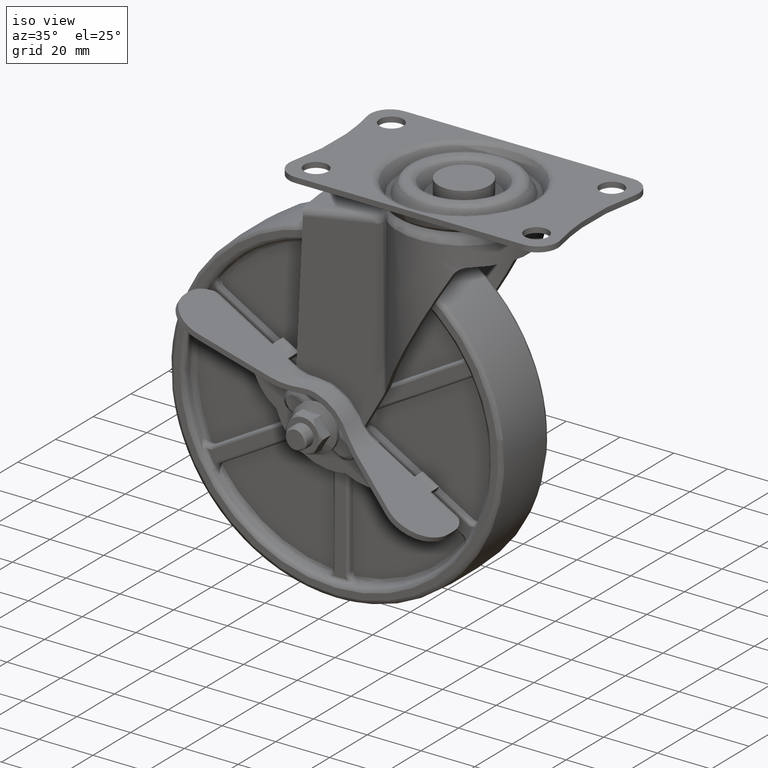
[diagram: clean part render]
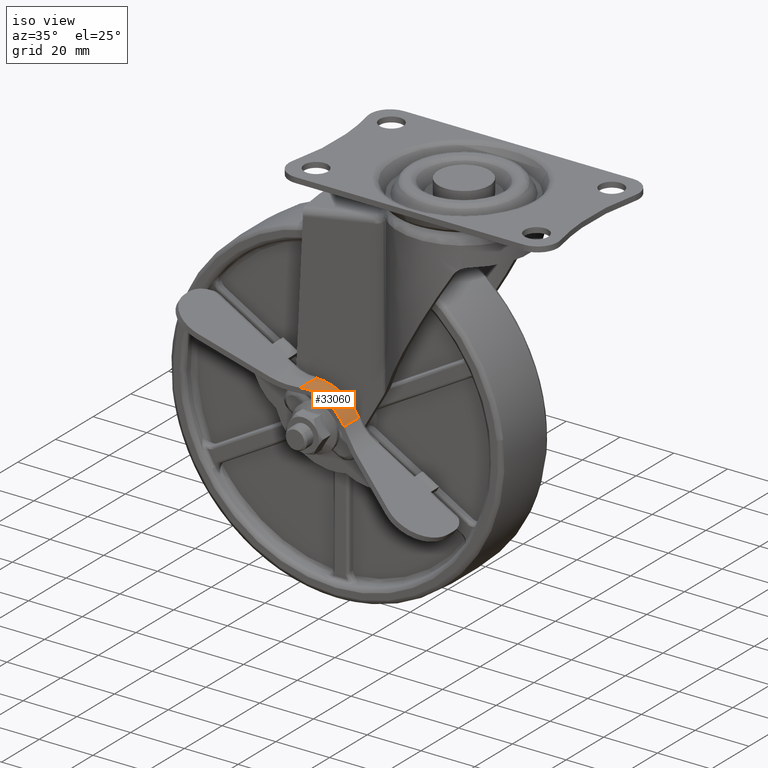
[diagram: same view with one face highlighted and labeled with its STEP entity id]
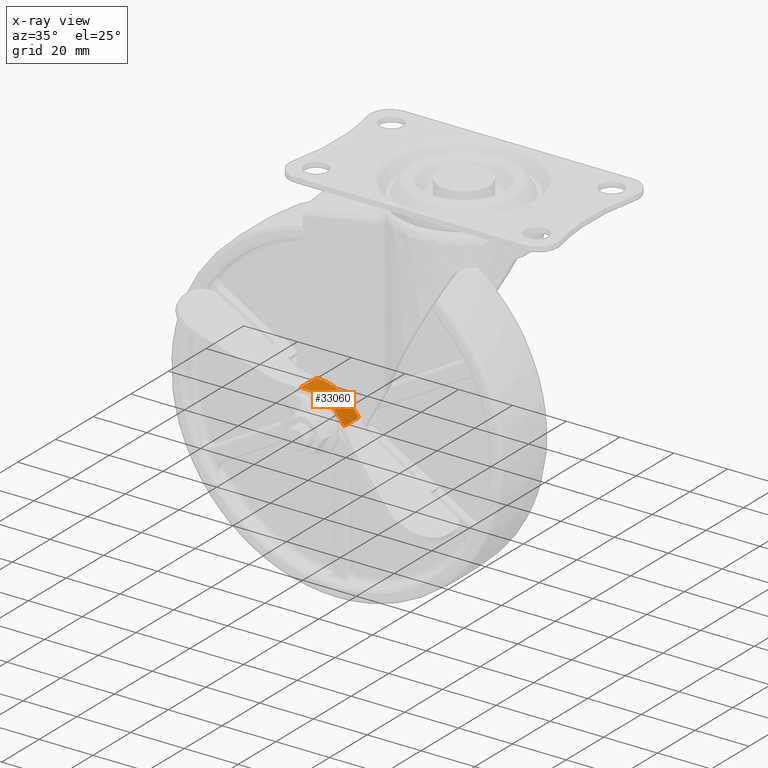
[diagram: x-ray of the same camera — body ghosted, the highlighted face saturated]
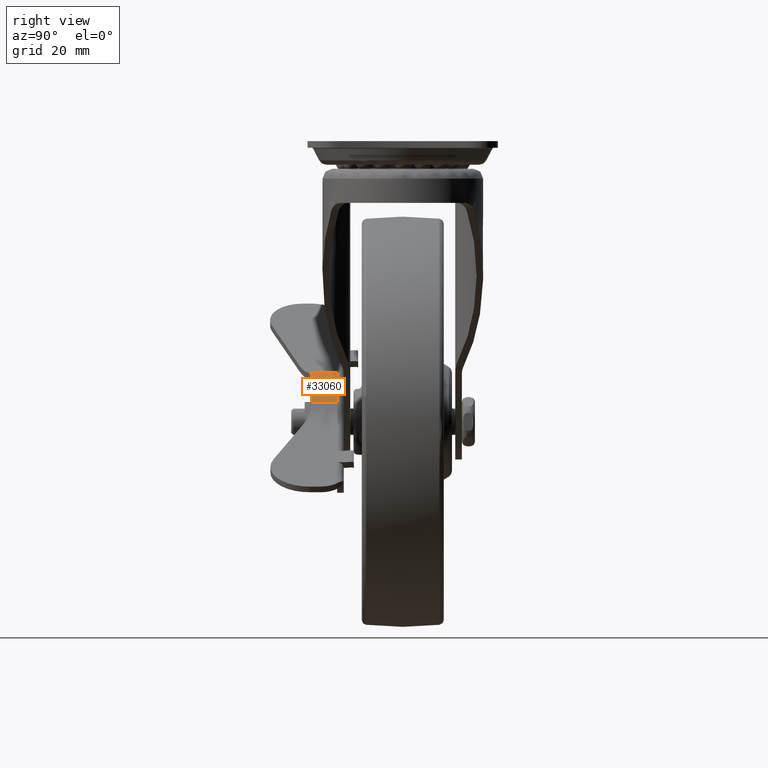
[diagram: same view with one face highlighted and labeled with its STEP entity id]
A machine part, iso view. The second image highlights one B-rep face of the part: STEP entity #33060.
The next image is the same camera in x-ray: the body ghosted, the highlighted face saturated — about 0% of this face is hidden behind the body in this view.
A second angle (right view) of the same face is appended — the face is thin or edge-on in the first view.
In plain terms, the highlighted face is a freeform B-spline surface patch.
Its self-contained STEP definition (entity closure, byte-faithful):
#31744=CARTESIAN_POINT('',(-25.138719599071909,-19.999999999999002,-77.655077235295238));
#31745=VERTEX_POINT('',#31744);
#31754=CARTESIAN_POINT('',(-25.138719599071909,-27.868861974446549,-77.655077235295238));
#31755=VERTEX_POINT('',#31754);
#31756=CARTESIAN_POINT('',(-25.138719599071909,-27.868861974446549,-77.655077235295238));
#31757=CARTESIAN_POINT('',(-25.138719599071909,-19.999999999999002,-77.655077235295238));
#31758=QUASI_UNIFORM_CURVE('',1,(#31756,#31757),.UNSPECIFIED.,.F.,.U.);
#31759=EDGE_CURVE('',#31755,#31745,#31758,.T.);
#31988=CARTESIAN_POINT('',(-40.868765832653168,-19.999999999999002,-68.573322480068214));
#31989=VERTEX_POINT('',#31988);
#32001=CARTESIAN_POINT('',(-25.138719599071909,-19.999999999999002,-77.655077235295238));
#32002=CARTESIAN_POINT('',(-26.008408918612400,-19.999999999998991,-76.092609768018207));
#32003=CARTESIAN_POINT('',(-27.919290814433140,-19.999999999999030,-73.632730875286157));
#32004=CARTESIAN_POINT('',(-31.340594839720641,-19.999999999999059,-71.032600186757946));
#32005=CARTESIAN_POINT('',(-34.593645395936448,-19.999999999998920,-69.503510160626433));
#32006=CARTESIAN_POINT('',(-37.786970740985083,-19.999999999999119,-68.702598195621263));
#32007=CARTESIAN_POINT('',(-39.875496546120800,-19.999999999998920,-68.558167262021897));
#32008=CARTESIAN_POINT('',(-40.868765832653168,-19.999999999999002,-68.573322480068214));
#32009=B_SPLINE_CURVE_WITH_KNOTS('',3,(#32001,#32002,#32003,#32004,#32005,#32006,#32007,#32008),.UNSPECIFIED.,.F.,.U.,(4,1,1,1,1,4),(0.000000102830942,5.364299409139294,9.238525284178913,12.814687591197920,16.092872991053429,19.073030761205668),.UNSPECIFIED.);
#32010=EDGE_CURVE('',#31745,#31989,#32009,.T.);
#32730=CARTESIAN_POINT('',(-40.868765904016101,-28.503809512559648,-68.573317780900382));
#32731=VERTEX_POINT('',#32730);
#32766=CARTESIAN_POINT('',(-35.420783333994478,-27.841463921768550,-69.345978672774322));
#32767=VERTEX_POINT('',#32766);
#32773=CARTESIAN_POINT('',(-40.868765904016101,-28.503809512559648,-68.573317780900382));
#32774=CARTESIAN_POINT('',(-39.955856303828092,-28.296949490633811,-68.559454064888897));
#32775=CARTESIAN_POINT('',(-39.045430353163709,-28.132113628317601,-68.615796921711521));
#32776=CARTESIAN_POINT('',(-37.681881270934547,-27.961250305939888,-68.807450073438744));
#32777=CARTESIAN_POINT('',(-37.227719166160163,-27.917059537156671,-68.889278579338679));
#32778=CARTESIAN_POINT('',(-36.660318135239180,-27.879570090147471,-69.014903675818061));
#32779=CARTESIAN_POINT('',(-36.546853047797200,-27.872961148556431,-69.041197749316254));
#32780=CARTESIAN_POINT('',(-36.319949700857620,-27.861572559145060,-69.096155417557128));
#32781=CARTESIAN_POINT('',(-36.206344701000177,-27.856788169471251,-69.124864074220852));
#32782=CARTESIAN_POINT('',(-35.867059884591043,-27.845305867602040,-69.214196545815796));
#32783=CARTESIAN_POINT('',(-35.642915617059067,-27.841463921768501,-69.278005229556271));
#32784=CARTESIAN_POINT('',(-35.420783333994450,-27.841463921768490,-69.345978672774265));
#32785=B_SPLINE_CURVE_WITH_KNOTS('',3,(#32773,#32774,#32775,#32776,#32777,#32778,#32779,#32780,#32781,#32782,#32783,#32784),.UNSPECIFIED.,.F.,.U.,(4,2,2,2,2,4),(0.0,0.500000000000000,0.749999999999999,0.812499999999999,0.874999999999999,1.0),.UNSPECIFIED.);
#32786=EDGE_CURVE('',#32731,#32767,#32785,.T.);
#32809=CARTESIAN_POINT('',(-25.755758589784389,-27.841463921768501,-76.630811359773645));
#32810=VERTEX_POINT('',#32809);
#32816=CARTESIAN_POINT('',(-35.420783333994478,-27.841463921768550,-69.345978672774322));
#32817=CARTESIAN_POINT('',(-33.697852664578491,-27.841463921768579,-69.872234116963597));
#32818=CARTESIAN_POINT('',(-31.529834621139400,-27.841463921768529,-70.920001166362198));
#32819=CARTESIAN_POINT('',(-28.251311138085779,-27.841463921768611,-73.419187955431894));
#32820=CARTESIAN_POINT('',(-26.701260383658951,-27.841463921768479,-75.173533068811892));
#32821=CARTESIAN_POINT('',(-25.755758589784389,-27.841463921768501,-76.630811359773645));
#32822=B_SPLINE_CURVE_WITH_KNOTS('',3,(#32816,#32817,#32818,#32819,#32820,#32821),.UNSPECIFIED.,.F.,.U.,(4,1,1,4),(0.000000046256021,5.404070350882703,7.141051851721110,12.352140580050170),.UNSPECIFIED.);
#32823=EDGE_CURVE('',#32767,#32810,#32822,.T.);
#32843=CARTESIAN_POINT('',(-25.755758589784389,-27.841463921768501,-76.630811359773645));
#32844=CARTESIAN_POINT('',(-25.538545898498018,-27.841628827647899,-76.965269895684926));
#32845=CARTESIAN_POINT('',(-25.332641238253810,-27.850772367364002,-77.307067724265082));
#32846=CARTESIAN_POINT('',(-25.138719599071909,-27.868861974446549,-77.655077235295238));
#32847=B_SPLINE_CURVE_WITH_KNOTS('',3,(#32843,#32844,#32845,#32846),.UNSPECIFIED.,.F.,.U.,(4,4),(4.132683E-010,1.196413916502711),.UNSPECIFIED.);
#32848=EDGE_CURVE('',#32810,#31755,#32847,.T.);
#33034=CARTESIAN_POINT('',(-24.918471869619012,-28.716404750373670,-78.062758914835655));
#33035=CARTESIAN_POINT('',(-24.918471869619012,-19.782089881239639,-78.062758914835655));
#33036=CARTESIAN_POINT('',(-30.249148523062217,-28.716404750373663,-67.879055875112783));
#33037=CARTESIAN_POINT('',(-30.249148523062217,-19.782089881239639,-67.879055875112783));
#33038=CARTESIAN_POINT('',(-41.720605704326260,-28.716404750373670,-68.606786129569585));
#33039=CARTESIAN_POINT('',(-41.720605704326260,-19.782089881239639,-68.606786129569585));
#33047=(BOUNDED_SURFACE()B_SPLINE_SURFACE(1,2,((#33034,#33036,#33038),(#33035,#33037,#33039)),.UNSPECIFIED.,.F.,.F.,.U.)B_SPLINE_SURFACE_WITH_KNOTS((2,2),(3,3),(0.0,8.934314869134035),(0.0,20.971920479744231),.UNSPECIFIED.)GEOMETRIC_REPRESENTATION_ITEM()RATIONAL_B_SPLINE_SURFACE(((1.0,0.838670567945424,1.0),(1.0,0.838670567945424,1.0)))REPRESENTATION_ITEM('')SURFACE());
#33048=ORIENTED_EDGE('',*,*,#31759,.T.);
#33049=ORIENTED_EDGE('',*,*,#32010,.T.);
#33050=CARTESIAN_POINT('',(-40.868765904016101,-28.503809512559648,-68.573317780900382));
#33051=CARTESIAN_POINT('',(-40.868765832653168,-19.999999999999002,-68.573322480068214));
#33052=QUASI_UNIFORM_CURVE('',1,(#33050,#33051),.UNSPECIFIED.,.F.,.U.);
#33053=EDGE_CURVE('',#32731,#31989,#33052,.T.);
#33054=ORIENTED_EDGE('',*,*,#33053,.F.);
#33055=ORIENTED_EDGE('',*,*,#32786,.T.);
#33056=ORIENTED_EDGE('',*,*,#32823,.T.);
#33057=ORIENTED_EDGE('',*,*,#32848,.T.);
#33058=EDGE_LOOP('',(#33048,#33049,#33054,#33055,#33056,#33057));
#33059=FACE_OUTER_BOUND('',#33058,.T.);
#33060=ADVANCED_FACE('',(#33059),#33047,.T.);